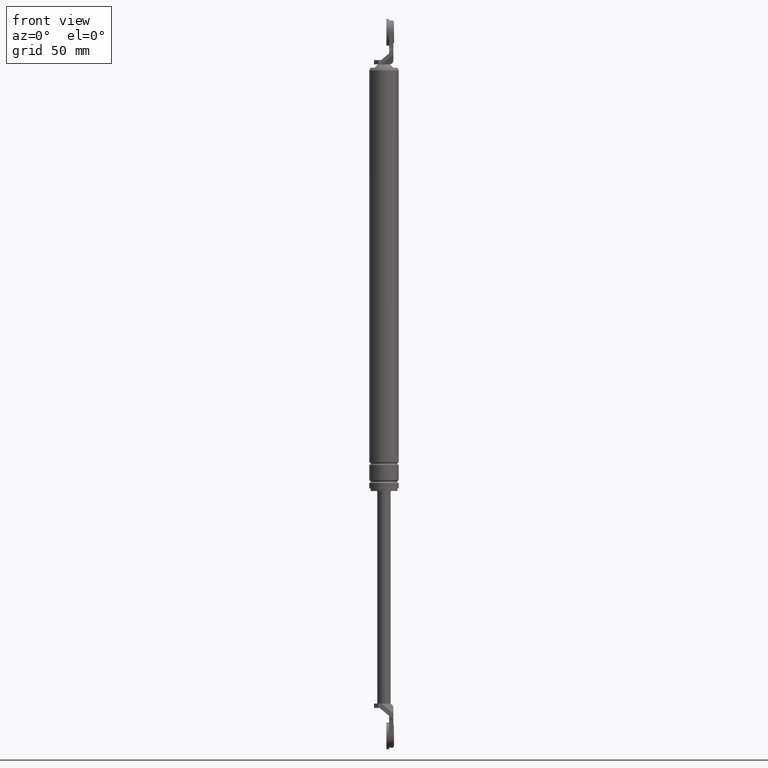
[diagram: clean part render]
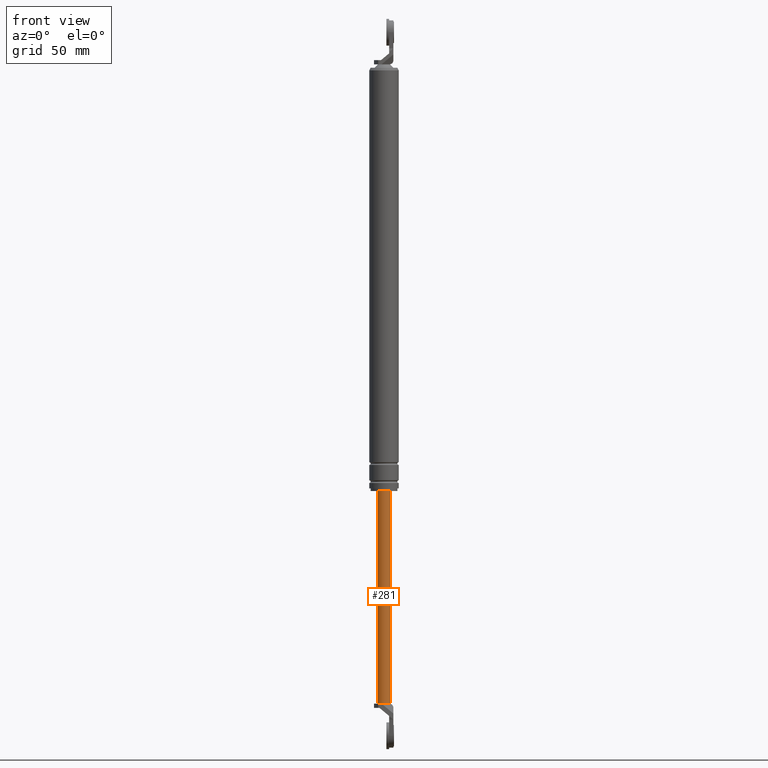
[diagram: same view with one face highlighted and labeled with its STEP entity id]
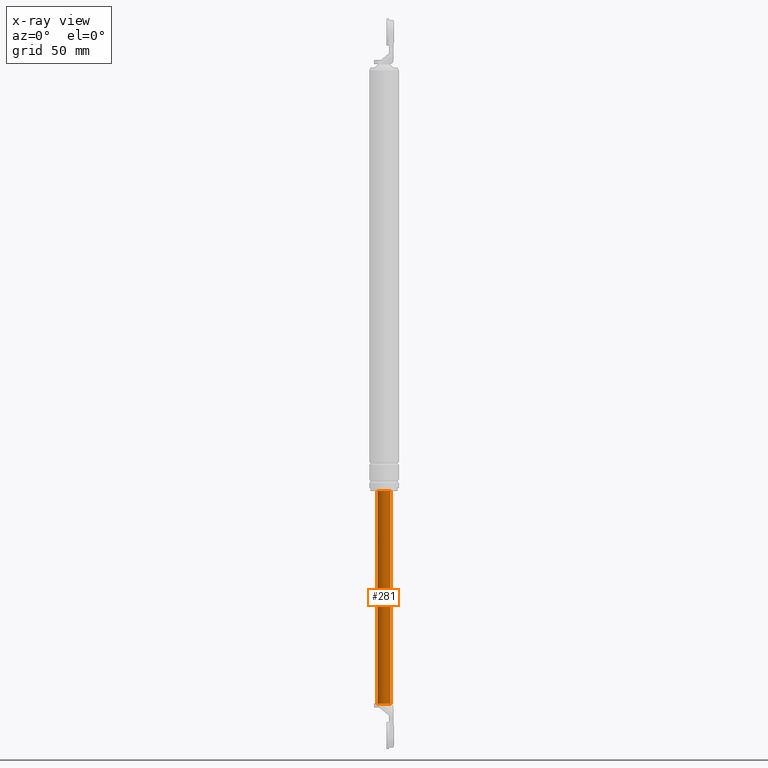
[diagram: x-ray of the same camera — body ghosted, the highlighted face saturated]
A machine part, front view. The second image highlights one B-rep face of the part: STEP entity #281.
The next image is the same camera in x-ray: the body ghosted, the highlighted face saturated — about 0% of this face is hidden behind the body in this view.
In plain terms, the highlighted cylindrical surface (edge-blend (fillet) strip) has radius 5 mm, axis along (0, 0, 1).
Its self-contained STEP definition (entity closure, byte-faithful):
#281=ADVANCED_FACE('',(#1065),#1064,.T.);
#1064=CYLINDRICAL_SURFACE('',#1664,5.00000000000E+000);
#1065=FACE_OUTER_BOUND('',#1665,.T.);
#1661=CARTESIAN_POINT('',(0.00000000000E+000,0.00000000000E+000,0.00000000000E+000));
#1662=DIRECTION('',(-0.00000000000E+000,-0.00000000000E+000,1.00000000000E+000));
#1663=DIRECTION('',(1.00000000000E+000,-0.00000000000E+000,-0.00000000000E+000));
#1664=AXIS2_PLACEMENT_3D('',#1661,#1662,#1663);
#1665=EDGE_LOOP('',(#2047,#2048,#2049,#2050,#2051));
#2047=ORIENTED_EDGE('',*,*,#2246,.F.);
#2048=ORIENTED_EDGE('',*,*,#2218,.F.);
#2049=ORIENTED_EDGE('',*,*,#2248,.T.);
#2050=ORIENTED_EDGE('',*,*,#2238,.T.);
#2051=ORIENTED_EDGE('',*,*,#2249,.F.);
#2218=EDGE_CURVE('',#3299,#3306,#3307,.T.);
#2238=EDGE_CURVE('',#3436,#3437,#3438,.T.);
#2246=EDGE_CURVE('',#3306,#3489,#3490,.T.);
#2248=EDGE_CURVE('',#3299,#3436,#3502,.T.);
#2249=EDGE_CURVE('',#3489,#3437,#3508,.T.);
#3299=VERTEX_POINT('',#4164);
#3306=VERTEX_POINT('',#4169);
#3307=CIRCLE('',#4173,5.00000000000E+000);
#3436=VERTEX_POINT('',#4242);
#3437=VERTEX_POINT('',#4243);
#3438=CIRCLE('',#4247,5.00000000000E+000);
#3489=VERTEX_POINT('',#4277);
#3490=CIRCLE('',#4281,5.00000000000E+000);
#3502=(BOUNDED_CURVE() B_SPLINE_CURVE(1,(#4286,#4287),.UNSPECIFIED.,.F.,.F.) B_SPLINE_CURVE_WITH_KNOTS((2,2),(5.58659171684E-002,9.44134083014E-001),.UNSPECIFIED.) CURVE() GEOMETRIC_REPRESENTATION_ITEM() RATIONAL_B_SPLINE_CURVE((1.00000000000E+000,1.00000000000E+000)) REPRESENTATION_ITEM('') );
#3508=(BOUNDED_CURVE() B_SPLINE_CURVE(1,(#4288,#4289),.UNSPECIFIED.,.F.,.F.) B_SPLINE_CURVE_WITH_KNOTS((2,2),(5.58659171062E-002,9.44134082894E-001),.UNSPECIFIED.) CURVE() GEOMETRIC_REPRESENTATION_ITEM() RATIONAL_B_SPLINE_CURVE((7.50000000000E-001,7.50000000000E-001)) REPRESENTATION_ITEM('') );
#4164=CARTESIAN_POINT('',(5.00000000000E+000,1.48029736617E-015,-1.09000015000E+002));
#4169=CARTESIAN_POINT('',(4.00000000000E+000,-3.00000000000E+000,-1.09000015000E+002));
#4170=CARTESIAN_POINT('',(0.00000000000E+000,0.00000000000E+000,-1.09000015000E+002));
#4171=DIRECTION('',(0.00000000000E+000,0.00000000000E+000,-1.00000000000E+000));
#4172=DIRECTION('',(8.00000000000E-001,6.00000000000E-001,0.00000000000E+000));
#4173=AXIS2_PLACEMENT_3D('',#4170,#4171,#4172);
#4242=CARTESIAN_POINT('',(5.00000000000E+000,2.96059473233E-016,5.00000000000E+001));
#4243=CARTESIAN_POINT('',(-5.00000000000E+000,0.00000000000E+000,5.00000000000E+001));
#4244=CARTESIAN_POINT('',(0.00000000000E+000,0.00000000000E+000,5.00000000000E+001));
#4245=DIRECTION('',(-0.00000000000E+000,0.00000000000E+000,-1.00000000000E+000));
#4246=DIRECTION('',(-1.00000000000E+000,-1.22460635382E-016,0.00000000000E+000));
#4247=AXIS2_PLACEMENT_3D('',#4244,#4245,#4246);
#4277=CARTESIAN_POINT('',(-5.00000000000E+000,6.36320440279E-009,-1.09000015000E+002));
#4278=CARTESIAN_POINT('',(0.00000000000E+000,0.00000000000E+000,-1.09000015000E+002));
#4279=DIRECTION('',(0.00000000000E+000,0.00000000000E+000,-1.00000000000E+000));
#4280=DIRECTION('',(1.00000000000E+000,-0.00000000000E+000,-0.00000000000E+000));
#4281=AXIS2_PLACEMENT_3D('',#4278,#4279,#4280);
#4286=CARTESIAN_POINT('',(5.00000000000E+000,0.00000000000E+000,-1.09000014989E+002));
#4287=CARTESIAN_POINT('',(5.00000000000E+000,0.00000000000E+000,5.00000000215E+001));
#4288=CARTESIAN_POINT('',(-5.00000000000E+000,-2.96059473233E-016,-1.09000015000E+002));
#4289=CARTESIAN_POINT('',(-5.00000000000E+000,-2.96059473233E-016,5.00000000000E+001));